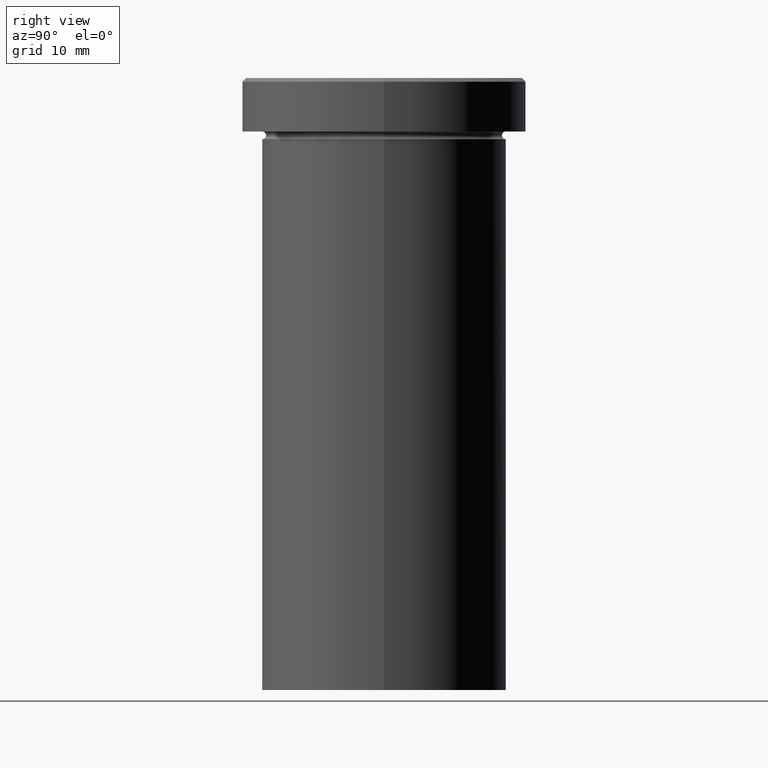
[diagram: clean part render]
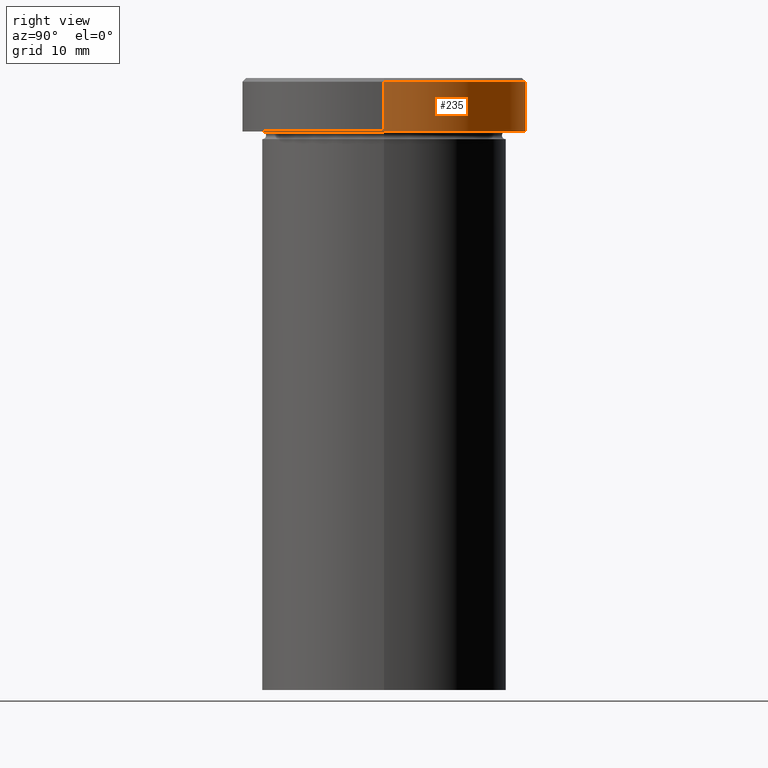
[diagram: same view with one face highlighted and labeled with its STEP entity id]
A machine part, right view. The second image highlights one B-rep face of the part: STEP entity #235.
In plain terms, the highlighted cylindrical surface (partial cylindrical patch) has radius 18.5 mm, axis along (-0, -0, 1).
Its self-contained STEP definition (entity closure, byte-faithful):
#1 = CARTESIAN_POINT ( 'NONE',  ( 18.50000000000000000, 0.000000000000000000, -6.999999999999998224 ) ) ;
#4 = DIRECTION ( 'NONE',  ( 1.000000000000000000, 0.000000000000000000, 0.000000000000000000 ) ) ;
#14 = CIRCLE ( 'NONE', #279, 18.50000000000000000 ) ;
#29 = CYLINDRICAL_SURFACE ( 'NONE', #234, 18.50000000000000000 ) ;
#38 = DIRECTION ( 'NONE',  ( -0.000000000000000000, -0.000000000000000000, 1.000000000000000000 ) ) ;
#51 = DIRECTION ( 'NONE',  ( -0.000000000000000000, -0.000000000000000000, 1.000000000000000000 ) ) ;
#76 = ORIENTED_EDGE ( 'NONE', *, *, #327, .T. ) ;
#79 = VERTEX_POINT ( 'NONE', #1 ) ;
#89 = VECTOR ( 'NONE', #393, 1000.000000000000000 ) ;
#120 = ORIENTED_EDGE ( 'NONE', *, *, #158, .T. ) ;
#136 = CARTESIAN_POINT ( 'NONE',  ( 0.000000000000000000, 0.000000000000000000, -6.999999999999998224 ) ) ;
#150 = AXIS2_PLACEMENT_3D ( 'NONE', #207, #332, #240 ) ;
#155 = DIRECTION ( 'NONE',  ( -0.000000000000000000, -0.000000000000000000, 1.000000000000000000 ) ) ;
#156 = CARTESIAN_POINT ( 'NONE',  ( 0.000000000000000000, 0.000000000000000000, 0.000000000000000000 ) ) ;
#158 = EDGE_CURVE ( 'NONE', #79, #409, #14, .T. ) ;
#164 = VECTOR ( 'NONE', #51, 1000.000000000000000 ) ;
#207 = CARTESIAN_POINT ( 'NONE',  ( 0.000000000000000000, 0.000000000000000000, -0.5000000000000213163 ) ) ;
#211 = CARTESIAN_POINT ( 'NONE',  ( -18.50000000000000000, 2.265596578422603396E-15, 0.000000000000000000 ) ) ;
#221 = VERTEX_POINT ( 'NONE', #321 ) ;
#234 = AXIS2_PLACEMENT_3D ( 'NONE', #156, #155, #4 ) ;
#235 = ADVANCED_FACE ( 'NONE', ( #323 ), #29, .T. ) ;
#236 = CARTESIAN_POINT ( 'NONE',  ( 18.50000000000000000, 0.000000000000000000, 0.000000000000000000 ) ) ;
#240 = DIRECTION ( 'NONE',  ( 1.000000000000000000, 0.000000000000000000, 0.000000000000000000 ) ) ;
#242 = ORIENTED_EDGE ( 'NONE', *, *, #316, .T. ) ;
#247 = CARTESIAN_POINT ( 'NONE',  ( -18.50000000000000000, 2.265596578422603396E-15, -0.5000000000000213163 ) ) ;
#263 = EDGE_CURVE ( 'NONE', #79, #221, #267, .T. ) ;
#267 = LINE ( 'NONE', #236, #89 ) ;
#279 = AXIS2_PLACEMENT_3D ( 'NONE', #136, #38, #289 ) ;
#289 = DIRECTION ( 'NONE',  ( 1.000000000000000000, 0.000000000000000000, 0.000000000000000000 ) ) ;
#316 = EDGE_CURVE ( 'NONE', #372, #221, #377, .T. ) ;
#321 = CARTESIAN_POINT ( 'NONE',  ( 18.50000000000000000, 0.000000000000000000, -0.5000000000000213163 ) ) ;
#323 = FACE_OUTER_BOUND ( 'NONE', #376, .T. ) ;
#327 = EDGE_CURVE ( 'NONE', #409, #372, #369, .T. ) ;
#329 = ORIENTED_EDGE ( 'NONE', *, *, #263, .F. ) ;
#332 = DIRECTION ( 'NONE',  ( 0.000000000000000000, 0.000000000000000000, -1.000000000000000000 ) ) ;
#369 = LINE ( 'NONE', #211, #164 ) ;
#372 = VERTEX_POINT ( 'NONE', #247 ) ;
#376 = EDGE_LOOP ( 'NONE', ( #120, #76, #242, #329 ) ) ;
#377 = CIRCLE ( 'NONE', #150, 18.50000000000000000 ) ;
#393 = DIRECTION ( 'NONE',  ( -0.000000000000000000, -0.000000000000000000, 1.000000000000000000 ) ) ;
#402 = CARTESIAN_POINT ( 'NONE',  ( -18.50000000000000000, 2.265596578422603396E-15, -6.999999999999998224 ) ) ;
#409 = VERTEX_POINT ( 'NONE', #402 ) ;